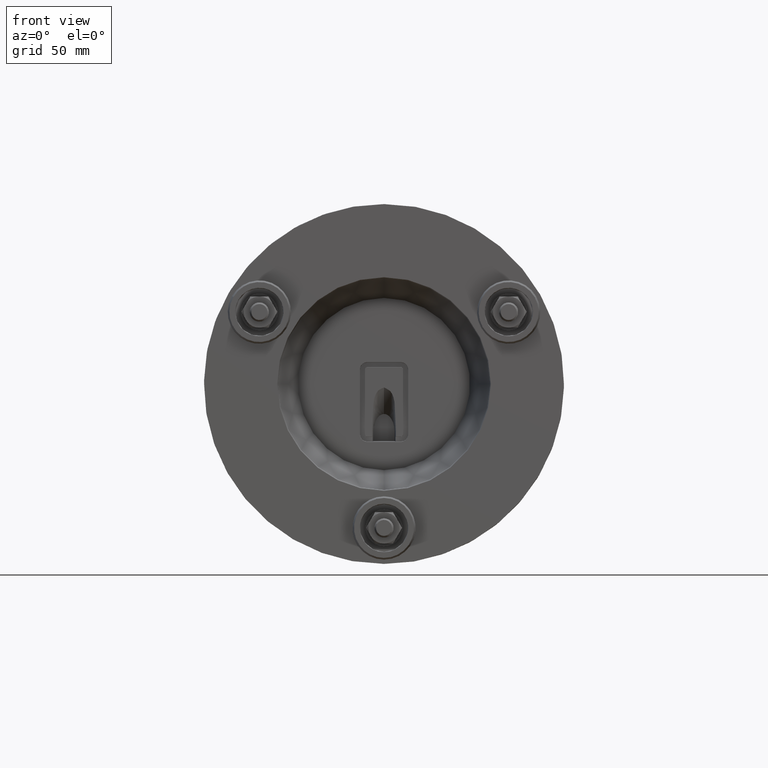
[diagram: clean part render]
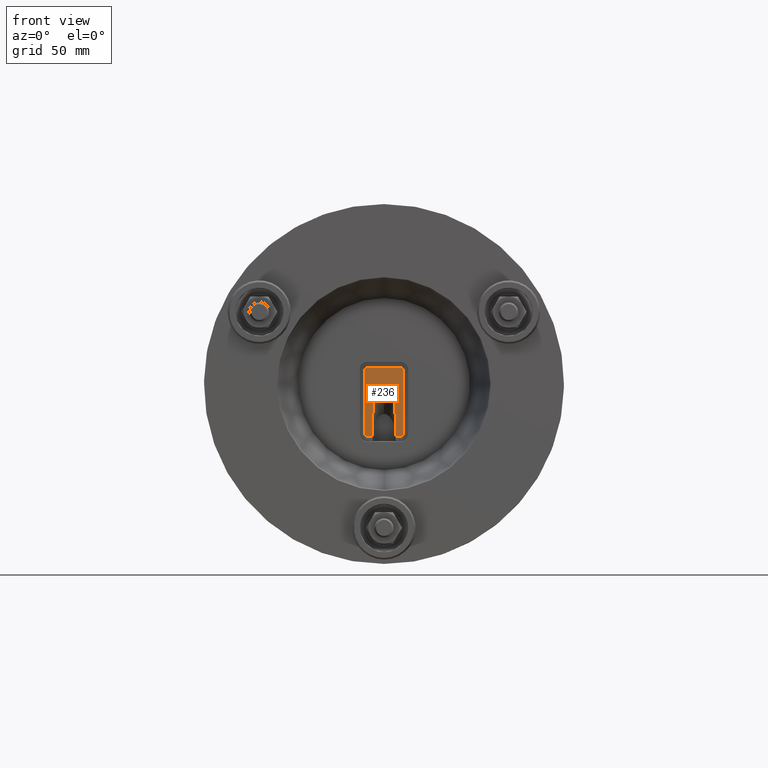
[diagram: same view with one face highlighted and labeled with its STEP entity id]
A machine part, front view. The second image highlights one B-rep face of the part: STEP entity #236.
In plain terms, the highlighted planar face has unit normal (0, -1, 0).
Its self-contained STEP definition (entity closure, byte-faithful):
#40 = ORIENTED_EDGE ( 'NONE', *, *, #650, .T. ) ;
#41 = B_SPLINE_CURVE_WITH_KNOTS ( 'NONE', 3,
 ( #469, #1882, #3401, #4472 ),
 .UNSPECIFIED., .F., .F.,
 ( 4, 4 ),
 ( 0.000000000000000000, 1.000000000000000000 ),
 .UNSPECIFIED. ) ;
#53 = DIRECTION ( 'NONE',  ( -1.000000000000000000, 0.000000000000000000, -6.938893904406622296E-15 ) ) ;
#91 = CARTESIAN_POINT ( 'NONE',  ( 2.490276525556199161, 42.54999999999962057, -2.770777713042330781 ) ) ;
#110 = CARTESIAN_POINT ( 'NONE',  ( 4.985253613901120318, 42.54999999999999716, -7.500000000000000000 ) ) ;
#125 = CARTESIAN_POINT ( 'NONE',  ( -7.949999999927889860, 42.55000000000075033, -21.00000000000000000 ) ) ;
#154 = EDGE_CURVE ( 'NONE', #2581, #4128, #4177, .T. ) ;
#200 = CARTESIAN_POINT ( 'NONE',  ( 4.742626808985184184, 42.55000000023655105, -14.52206961939286955 ) ) ;
#203 = AXIS2_PLACEMENT_3D ( 'NONE', #2437, #4329, #4695 ) ;
#224 = DIRECTION ( 'NONE',  ( 0.000000000000000000, 1.000000000000000000, 0.000000000000000000 ) ) ;
#236 = ADVANCED_FACE ( 'NONE', ( #2772 ), #252, .T. ) ;
#252 = PLANE ( 'NONE',  #477 ) ;
#310 = EDGE_CURVE ( 'NONE', #1698, #4443, #2429, .T. ) ;
#366 = DIRECTION ( 'NONE',  ( 0.000000000000000000, -1.000000000000000000, 0.000000000000000000 ) ) ;
#457 = CARTESIAN_POINT ( 'NONE',  ( -4.499999999999946709, 42.55000000000000426, -8.467568336634153425 ) ) ;
#469 = CARTESIAN_POINT ( 'NONE',  ( 4.500000001461799570, 42.55000000189239984, -9.416920952053219551 ) ) ;
#477 = AXIS2_PLACEMENT_3D ( 'NONE', #3229, #2091, #2452 ) ;
#534 = CARTESIAN_POINT ( 'NONE',  ( 6.949999999999999289, 42.54999999999999716, 6.999999999969760189 ) ) ;
#535 = ORIENTED_EDGE ( 'NONE', *, *, #3607, .T. ) ;
#549 = CARTESIAN_POINT ( 'NONE',  ( 7.949999999927999106, 42.55000000000075033, 6.000000000000000000 ) ) ;
#558 = VERTEX_POINT ( 'NONE', #1262 ) ;
#561 = VECTOR ( 'NONE', #1264, 1000.000000000000000 ) ;
#599 = CARTESIAN_POINT ( 'NONE',  ( -0.8132455012984370901, 42.54999999999999716, -1.615146125114628628 ) ) ;
#650 = EDGE_CURVE ( 'NONE', #1378, #4585, #3267, .T. ) ;
#692 = VECTOR ( 'NONE', #4050, 1000.000000000000000 ) ;
#708 = B_SPLINE_CURVE_WITH_KNOTS ( 'NONE', 3,
 ( #1660, #2664, #4611, #1291, #4131, #2043, #815, #2297, #3407, #91, #1641, #3113, #2817, #3660, #3298, #2163, #1809, #2525 ),
 .UNSPECIFIED., .F., .F.,
 ( 4, 2, 2, 2, 2, 2, 2, 2, 4 ),
 ( 8.685391978446561001E-19, 0.0006134765473338526717, 0.001226953094667704476, 0.001840429642001556280, 0.002453906189335408085, 0.003680859284003111694, 0.004907812378670815302, 0.007361718568006222520, 0.009815624757341630605 ),
 .UNSPECIFIED. ) ;
#805 = LINE ( 'NONE', #4145, #3615 ) ;
#815 = CARTESIAN_POINT ( 'NONE',  ( 1.555058471658542496, 42.54999999999986926, -1.968138424074469484 ) ) ;
#817 = ORIENTED_EDGE ( 'NONE', *, *, #3761, .T. ) ;
#822 = DIRECTION ( 'NONE',  ( -6.982962677686270655E-15, 0.000000000000000000, 1.000000000000000000 ) ) ;
#832 = CARTESIAN_POINT ( 'NONE',  ( -7.949999999969750597, 42.54999999999999716, 6.000000000000000000 ) ) ;
#842 = CARTESIAN_POINT ( 'NONE',  ( -2.491132098972049125, 42.54999999999999716, -2.771540078344461477 ) ) ;
#847 = CARTESIAN_POINT ( 'NONE',  ( -4.985253613901010183, 42.54999999999999716, -7.500000000000000000 ) ) ;
#929 = VECTOR ( 'NONE', #4571, 1000.000000000000000 ) ;
#1009 = CARTESIAN_POINT ( 'NONE',  ( 1.043758144748353610E-14, 42.54999999999999005, -1.494721070303919097 ) ) ;
#1033 = CARTESIAN_POINT ( 'NONE',  ( -1.381056331801686188, 42.54999999999999005, -1.863292173042350619 ) ) ;
#1113 = LINE ( 'NONE', #4578, #1614 ) ;
#1142 = CIRCLE ( 'NONE', #4626, 0.9999999999280245744 ) ;
#1151 = ORIENTED_EDGE ( 'NONE', *, *, #2225, .T. ) ;
#1198 = ORIENTED_EDGE ( 'NONE', *, *, #1903, .T. ) ;
#1262 = CARTESIAN_POINT ( 'NONE',  ( -4.500000002914378960, 42.54999999991060378, -9.416920946134389681 ) ) ;
#1264 = DIRECTION ( 'NONE',  ( -6.982962677686270655E-15, 0.000000000000000000, 1.000000000000000000 ) ) ;
#1291 = CARTESIAN_POINT ( 'NONE',  ( 0.8099669214303677478, 42.54999999999998295, -1.614115107408403249 ) ) ;
#1309 = VECTOR ( 'NONE', #1593, 1000.000000000000000 ) ;
#1360 = VECTOR ( 'NONE', #2425, 1000.000000000000000 ) ;
#1378 = VERTEX_POINT ( 'NONE', #3682 ) ;
#1400 = CARTESIAN_POINT ( 'NONE',  ( 4.985253615600850452, 42.54999999999999716, -19.62721829106140348 ) ) ;
#1487 = ORIENTED_EDGE ( 'NONE', *, *, #2360, .T. ) ;
#1492 = VERTEX_POINT ( 'NONE', #4542 ) ;
#1516 = EDGE_CURVE ( 'NONE', #2581, #4137, #3127, .T. ) ;
#1528 = CIRCLE ( 'NONE', #203, 0.9999999999280237972 ) ;
#1559 = VERTEX_POINT ( 'NONE', #125 ) ;
#1572 = VERTEX_POINT ( 'NONE', #3105 ) ;
#1582 = CARTESIAN_POINT ( 'NONE',  ( -3.389875206745883940, 42.54999999999999716, -4.141252617436340877 ) ) ;
#1590 = VERTEX_POINT ( 'NONE', #534 ) ;
#1593 = DIRECTION ( 'NONE',  ( 6.982962677686270655E-15, 0.000000000000000000, -1.000000000000000000 ) ) ;
#1614 = VECTOR ( 'NONE', #822, 1000.000000000000000 ) ;
#1615 = DIRECTION ( 'NONE',  ( 0.000000000000000000, -1.000000000000000000, 0.000000000000000000 ) ) ;
#1637 = CARTESIAN_POINT ( 'NONE',  ( -6.949999999999999289, 42.54999999999999716, 6.000000000000000000 ) ) ;
#1641 = CARTESIAN_POINT ( 'NONE',  ( 2.746339187614974087, 42.55000000000000426, -3.092564806462561933 ) ) ;
#1660 = CARTESIAN_POINT ( 'NONE',  ( 1.043758144748353610E-14, 42.54999999999999005, -1.494721070303919097 ) ) ;
#1683 = LINE ( 'NONE', #3852, #1360 ) ;
#1688 = DIRECTION ( 'NONE',  ( 0.04747232183882325179, -5.554008637149010840E-10, -0.9988725537621060413 ) ) ;
#1698 = VERTEX_POINT ( 'NONE', #3216 ) ;
#1754 = ORIENTED_EDGE ( 'NONE', *, *, #2508, .T. ) ;
#1771 = CARTESIAN_POINT ( 'NONE',  ( -1.556494308375035107, 42.54999999999999005, -1.969156000045341859 ) ) ;
#1809 = CARTESIAN_POINT ( 'NONE',  ( 4.500000000000055067, 42.54999999999999005, -8.467245004151001453 ) ) ;
#1818 = CARTESIAN_POINT ( 'NONE',  ( -4.985253615600570676, 42.54999999999999716, -19.62721829106144966 ) ) ;
#1882 = CARTESIAN_POINT ( 'NONE',  ( 4.500000000000070166, 42.54999999929584931, -9.374263865803770912 ) ) ;
#1903 = EDGE_CURVE ( 'NONE', #1572, #1492, #4172, .T. ) ;
#1939 = CARTESIAN_POINT ( 'NONE',  ( -4.123260392111347983, 42.54999999999999005, -6.055366097289952343 ) ) ;
#1973 = VERTEX_POINT ( 'NONE', #549 ) ;
#1979 = CARTESIAN_POINT ( 'NONE',  ( 7.704325684000149721, 42.54999999999999716, -21.99999999996965272 ) ) ;
#1998 = ORIENTED_EDGE ( 'NONE', *, *, #3068, .T. ) ;
#2043 = CARTESIAN_POINT ( 'NONE',  ( 1.378998734156616779, 42.55000000000001137, -1.862187794257406548 ) ) ;
#2053 = CARTESIAN_POINT ( 'NONE',  ( -1.007917951286458003, 42.54999999999998295, -1.685355570168906914 ) ) ;
#2071 = ORIENTED_EDGE ( 'NONE', *, *, #4774, .T. ) ;
#2072 = AXIS2_PLACEMENT_3D ( 'NONE', #1637, #1615, #3149 ) ;
#2091 = DIRECTION ( 'NONE',  ( 0.000000000000000000, -1.000000000000000000, 0.000000000000000000 ) ) ;
#2156 = EDGE_CURVE ( 'NONE', #4128, #1559, #1142, .T. ) ;
#2158 = CIRCLE ( 'NONE', #4713, 0.9999999999280297924 ) ;
#2159 = ORIENTED_EDGE ( 'NONE', *, *, #4598, .F. ) ;
#2163 = CARTESIAN_POINT ( 'NONE',  ( 4.426915057054531033, 42.55000000000000426, -7.655589430090690151 ) ) ;
#2177 = DIRECTION ( 'NONE',  ( 0.04747232140407314088, 0.000000000000000000, 0.9988725537827678469 ) ) ;
#2225 = EDGE_CURVE ( 'NONE', #1492, #2935, #708, .T. ) ;
#2289 = CARTESIAN_POINT ( 'NONE',  ( 6.950000000000139622, 42.54999999999999716, -21.00000000000000000 ) ) ;
#2297 = CARTESIAN_POINT ( 'NONE',  ( 1.890524274576068420, 42.54999999999986926, -2.208931889817811633 ) ) ;
#2325 = CARTESIAN_POINT ( 'NONE',  ( -2.047857772515114583, 42.54999999999999005, -2.342382419701793506 ) ) ;
#2360 = EDGE_CURVE ( 'NONE', #1590, #4060, #805, .T. ) ;
#2382 = CARTESIAN_POINT ( 'NONE',  ( -6.949999999999849187, 42.54999999999999716, -21.00000000000000000 ) ) ;
#2425 = DIRECTION ( 'NONE',  ( -6.982962677686270655E-15, 0.000000000000000000, 1.000000000000000000 ) ) ;
#2429 = LINE ( 'NONE', #200, #2787 ) ;
#2437 = CARTESIAN_POINT ( 'NONE',  ( 6.949999999999999289, 42.54999999999999716, 6.000000000000000000 ) ) ;
#2452 = DIRECTION ( 'NONE',  ( 0.000000000000000000, 0.000000000000000000, -1.000000000000000000 ) ) ;
#2508 = EDGE_CURVE ( 'NONE', #4060, #4675, #4347, .T. ) ;
#2525 = CARTESIAN_POINT ( 'NONE',  ( 4.500000000000063061, 42.54999999999999716, -9.288949707063119732 ) ) ;
#2540 = LINE ( 'NONE', #4059, #2839 ) ;
#2581 = VERTEX_POINT ( 'NONE', #3752 ) ;
#2664 = CARTESIAN_POINT ( 'NONE',  ( 0.2082066919047610709, 42.55000000000000426, -1.494721070303922650 ) ) ;
#2676 = EDGE_CURVE ( 'NONE', #558, #1572, #1113, .T. ) ;
#2680 = ORIENTED_EDGE ( 'NONE', *, *, #310, .T. ) ;
#2694 = CARTESIAN_POINT ( 'NONE',  ( -4.426970446999890285, 42.54999999999999005, -7.656255700119520391 ) ) ;
#2772 = FACE_OUTER_BOUND ( 'NONE', #2985, .T. ) ;
#2787 = VECTOR ( 'NONE', #1688, 999.9999999999998863 ) ;
#2805 = CARTESIAN_POINT ( 'NONE',  ( 4.500000000000063061, 42.54999999999999716, -9.288949707063119732 ) ) ;
#2817 = CARTESIAN_POINT ( 'NONE',  ( 3.390373113958760953, 42.55000000000000426, -4.142358363744197192 ) ) ;
#2839 = VECTOR ( 'NONE', #2177, 1000.000000000000114 ) ;
#2935 = VERTEX_POINT ( 'NONE', #2805 ) ;
#2954 = EDGE_CURVE ( 'NONE', #1973, #1590, #1528, .T. ) ;
#2985 = EDGE_LOOP ( 'NONE', ( #4583, #1998, #3278, #1198, #1151, #2159, #2680, #817, #40, #3931, #2071, #3939, #1487, #1754, #535, #4324, #3316 ) ) ;
#3035 = VERTEX_POINT ( 'NONE', #3696 ) ;
#3055 = CARTESIAN_POINT ( 'NONE',  ( -3.195572495803816970, 42.54999999999949978, -3.776723245659736605 ) ) ;
#3068 = EDGE_CURVE ( 'NONE', #4137, #558, #2540, .T. ) ;
#3105 = CARTESIAN_POINT ( 'NONE',  ( -4.500000004371609741, 42.54999999999999716, -9.288949712284399141 ) ) ;
#3113 = CARTESIAN_POINT ( 'NONE',  ( 3.198734506907737973, 42.55000000000000426, -3.781989084754270536 ) ) ;
#3119 = CARTESIAN_POINT ( 'NONE',  ( -6.949999999999999289, 42.55000000000075033, 6.999999999927990046 ) ) ;
#3127 = LINE ( 'NONE', #847, #561 ) ;
#3149 = DIRECTION ( 'NONE',  ( -1.000000000000000000, 0.000000000000000000, -6.938893904406652272E-15 ) ) ;
#3216 = CARTESIAN_POINT ( 'NONE',  ( 4.500000001461799570, 42.55000000189239984, -9.416920952053219551 ) ) ;
#3229 = CARTESIAN_POINT ( 'NONE',  ( 7.704325683999948993, 42.54999999999999716, 6.754325684000050067 ) ) ;
#3267 = LINE ( 'NONE', #3573, #3416 ) ;
#3278 = ORIENTED_EDGE ( 'NONE', *, *, #2676, .T. ) ;
#3298 = CARTESIAN_POINT ( 'NONE',  ( 4.122926008389611319, 42.55000000000000426, -6.053978307147381166 ) ) ;
#3300 = LINE ( 'NONE', #3760, #692 ) ;
#3316 = ORIENTED_EDGE ( 'NONE', *, *, #154, .F. ) ;
#3401 = CARTESIAN_POINT ( 'NONE',  ( 4.500000000000070166, 42.54999999884185513, -9.331606783822829598 ) ) ;
#3407 = CARTESIAN_POINT ( 'NONE',  ( 2.048866109370754529, 42.54999999999962768, -2.343325729119080769 ) ) ;
#3411 = CARTESIAN_POINT ( 'NONE',  ( -3.890435854250558823, 42.55000000000000426, -5.259841267824397981 ) ) ;
#3416 = VECTOR ( 'NONE', #4744, 1000.000000000000000 ) ;
#3523 = CARTESIAN_POINT ( 'NONE',  ( -0.2078160868526399419, 42.54999999999991189, -1.494721070303857591 ) ) ;
#3566 = EDGE_CURVE ( 'NONE', #4585, #3035, #2158, .T. ) ;
#3573 = CARTESIAN_POINT ( 'NONE',  ( -6.949999999999849187, 42.54999999999999716, -21.99999999996975220 ) ) ;
#3596 = CARTESIAN_POINT ( 'NONE',  ( -1.889409784289134198, 42.54999999999999716, -2.208144985193928100 ) ) ;
#3607 = EDGE_CURVE ( 'NONE', #4675, #1559, #3300, .T. ) ;
#3615 = VECTOR ( 'NONE', #4495, 1000.000000000000000 ) ;
#3660 = CARTESIAN_POINT ( 'NONE',  ( 3.889514496615487982, 42.55000000000000426, -5.257796163228721120 ) ) ;
#3682 = CARTESIAN_POINT ( 'NONE',  ( 4.985253619000149961, 42.54999999999999716, -21.99999999996969891 ) ) ;
#3696 = CARTESIAN_POINT ( 'NONE',  ( 7.949999999969859843, 42.54999999999999716, -21.00000000000000000 ) ) ;
#3752 = CARTESIAN_POINT ( 'NONE',  ( -4.985253618999850644, 42.54999999999999716, -21.99999999996975220 ) ) ;
#3760 = CARTESIAN_POINT ( 'NONE',  ( -7.949999999969750597, 42.54999999999999716, 6.000000000000000000 ) ) ;
#3761 = EDGE_CURVE ( 'NONE', #4443, #1378, #4194, .T. ) ;
#3775 = CARTESIAN_POINT ( 'NONE',  ( -4.500000004371609741, 42.54999999999999716, -9.288949712284399141 ) ) ;
#3852 = CARTESIAN_POINT ( 'NONE',  ( 7.949999999969668885, 42.54999999999999716, 6.000000000000000000 ) ) ;
#3855 = DIRECTION ( 'NONE',  ( -1.000000000000000000, 0.000000000000000000, -6.938893904406658583E-15 ) ) ;
#3931 = ORIENTED_EDGE ( 'NONE', *, *, #3566, .T. ) ;
#3939 = ORIENTED_EDGE ( 'NONE', *, *, #2954, .T. ) ;
#3953 = CARTESIAN_POINT ( 'NONE',  ( 6.950000000000149392, 42.55000000000075033, -21.99999999992800070 ) ) ;
#4010 = CARTESIAN_POINT ( 'NONE',  ( -6.949999999999849187, 42.54999999999999716, -21.99999999996975220 ) ) ;
#4050 = DIRECTION ( 'NONE',  ( 6.982962677686270655E-15, 0.000000000000000000, -1.000000000000000000 ) ) ;
#4059 = CARTESIAN_POINT ( 'NONE',  ( -4.742626809166570645, 42.54999999998882032, -14.52206961865308976 ) ) ;
#4060 = VERTEX_POINT ( 'NONE', #3119 ) ;
#4128 = VERTEX_POINT ( 'NONE', #4010 ) ;
#4131 = CARTESIAN_POINT ( 'NONE',  ( 1.006879154511800989, 42.55000000000000426, -1.684984416417458775 ) ) ;
#4137 = VERTEX_POINT ( 'NONE', #1818 ) ;
#4145 = CARTESIAN_POINT ( 'NONE',  ( -6.949999999999999289, 42.54999999999999716, 6.999999999969659825 ) ) ;
#4159 = CARTESIAN_POINT ( 'NONE',  ( -2.745110936525386514, 42.54999999999951399, -3.091144520380832983 ) ) ;
#4172 = B_SPLINE_CURVE_WITH_KNOTS ( 'NONE', 3,
 ( #3775, #457, #2694, #1939, #3411, #1582, #3055, #4159, #842, #2325, #3596, #1771, #1033, #2053, #599, #4622, #3523, #1009 ),
 .UNSPECIFIED., .F., .F.,
 ( 4, 2, 2, 2, 2, 2, 2, 2, 4 ),
 ( 0.000000000000000000, 0.002441052700284054681, 0.004882105400568109363, 0.006102631750710135403, 0.007323158100852160575, 0.007933421275923174462, 0.008543684450994185747, 0.009153947626065198767, 0.009764210801136211787 ),
 .UNSPECIFIED. ) ;
#4177 = LINE ( 'NONE', #1979, #929 ) ;
#4194 = LINE ( 'NONE', #110, #1309 ) ;
#4324 = ORIENTED_EDGE ( 'NONE', *, *, #2156, .F. ) ;
#4329 = DIRECTION ( 'NONE',  ( 0.000000000000000000, -1.000000000000000000, 0.000000000000000000 ) ) ;
#4347 = CIRCLE ( 'NONE', #2072, 0.9999999999280254626 ) ;
#4443 = VERTEX_POINT ( 'NONE', #1400 ) ;
#4472 = CARTESIAN_POINT ( 'NONE',  ( 4.500000000000063061, 42.54999999999999716, -9.288949707063119732 ) ) ;
#4495 = DIRECTION ( 'NONE',  ( -1.000000000000000000, 0.000000000000000000, -6.982962677686270655E-15 ) ) ;
#4542 = CARTESIAN_POINT ( 'NONE',  ( 1.043758144748353610E-14, 42.54999999999999005, -1.494721070303919097 ) ) ;
#4571 = DIRECTION ( 'NONE',  ( -1.000000000000000000, 0.000000000000000000, -6.982962677686270655E-15 ) ) ;
#4578 = CARTESIAN_POINT ( 'NONE',  ( -4.500000004371619511, 42.54999999999999716, -7.500000000000000000 ) ) ;
#4583 = ORIENTED_EDGE ( 'NONE', *, *, #1516, .T. ) ;
#4585 = VERTEX_POINT ( 'NONE', #3953 ) ;
#4598 = EDGE_CURVE ( 'NONE', #1698, #2935, #41, .T. ) ;
#4611 = CARTESIAN_POINT ( 'NONE',  ( 0.4116506851616981155, 42.55000000000001137, -1.519596032907874150 ) ) ;
#4622 = CARTESIAN_POINT ( 'NONE',  ( -0.4147371333926127002, 42.54999999999999005, -1.520079423590053880 ) ) ;
#4626 = AXIS2_PLACEMENT_3D ( 'NONE', #2382, #224, #3855 ) ;
#4675 = VERTEX_POINT ( 'NONE', #832 ) ;
#4695 = DIRECTION ( 'NONE',  ( -1.000000000000000000, 0.000000000000000000, -6.938893904406663316E-15 ) ) ;
#4713 = AXIS2_PLACEMENT_3D ( 'NONE', #2289, #366, #53 ) ;
#4744 = DIRECTION ( 'NONE',  ( 1.000000000000000000, 0.000000000000000000, 6.982962677686270655E-15 ) ) ;
#4774 = EDGE_CURVE ( 'NONE', #3035, #1973, #1683, .T. ) ;